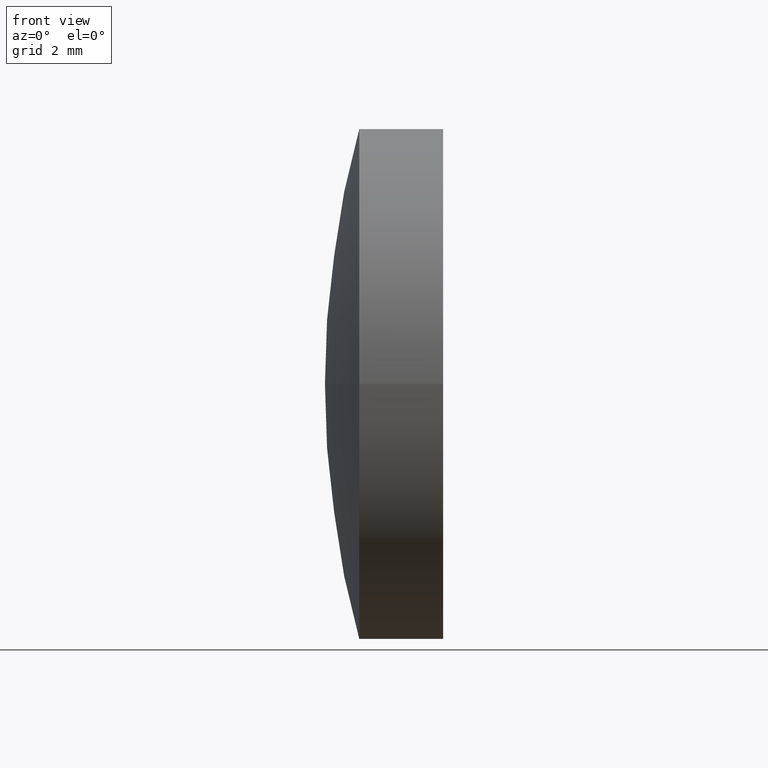
[diagram: clean part render]
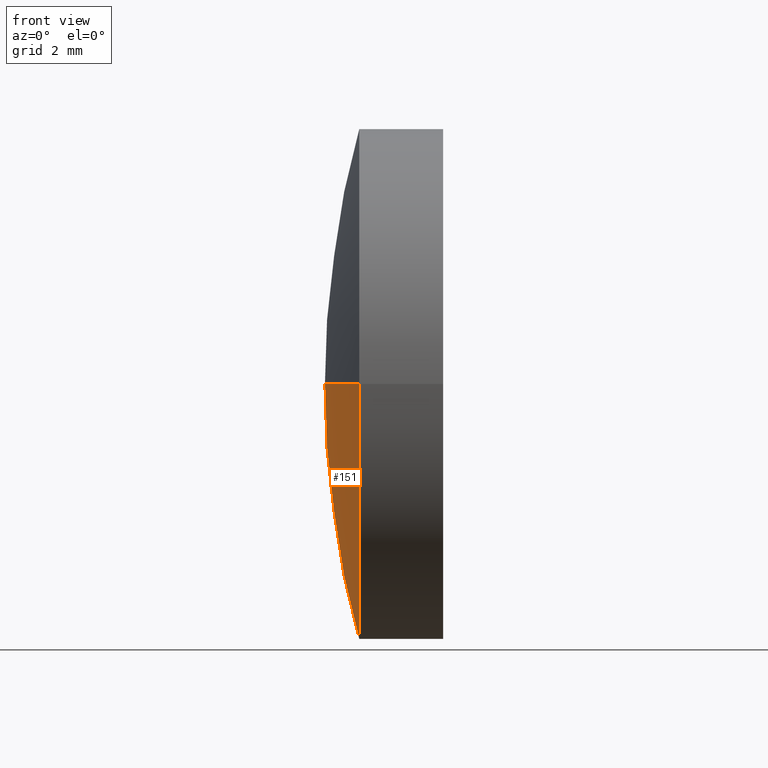
[diagram: same view with one face highlighted and labeled with its STEP entity id]
A machine part, front view. The second image highlights one B-rep face of the part: STEP entity #151.
In plain terms, the highlighted spherical surface has radius 23.7 mm.
Its self-contained STEP definition (entity closure, byte-faithful):
#11 = EDGE_CURVE ( 'NONE', #147, #45, #25, .T. ) ;
#19 = DIRECTION ( 'NONE',  ( -8.496118506040342700E-032, 1.224646799147353200E-016, -1.000000000000000000 ) ) ;
#21 = CARTESIAN_POINT ( 'NONE',  ( 85.00609674165498600, 32.60842023547017000, 0.0000000000000000000 ) ) ;
#24 = AXIS2_PLACEMENT_3D ( 'NONE', #65, #116, #98 ) ;
#25 = CIRCLE ( 'NONE', #162, 23.69999999999999900 ) ;
#34 = DIRECTION ( 'NONE',  ( 1.110223024625157300E-015, -1.000000000000000000, 0.0000000000000000000 ) ) ;
#36 = DIRECTION ( 'NONE',  ( -1.000000000000000000, -6.937607244762875000E-016, -0.0000000000000000000 ) ) ;
#43 = VERTEX_POINT ( 'NONE', #48 ) ;
#45 = VERTEX_POINT ( 'NONE', #51 ) ;
#48 = CARTESIAN_POINT ( 'NONE',  ( 62.14504908412190100, 26.35842023547016300, -7.654042494670948700E-016 ) ) ;
#51 = CARTESIAN_POINT ( 'NONE',  ( 61.30609674165499700, 32.60842023547015600, 0.0000000000000000000 ) ) ;
#57 = ORIENTED_EDGE ( 'NONE', *, *, #107, .T. ) ;
#65 = CARTESIAN_POINT ( 'NONE',  ( 85.00609674165498600, 32.60842023547017000, 0.0000000000000000000 ) ) ;
#70 = ORIENTED_EDGE ( 'NONE', *, *, #11, .F. ) ;
#77 = EDGE_CURVE ( 'NONE', #147, #43, #111, .T. ) ;
#79 = DIRECTION ( 'NONE',  ( 1.000000000000000000, 0.0000000000000000000, 0.0000000000000000000 ) ) ;
#98 = DIRECTION ( 'NONE',  ( -5.855606669963907800E-016, 1.000000000000000000, 0.0000000000000000000 ) ) ;
#102 = CARTESIAN_POINT ( 'NONE',  ( 62.14504908412190100, 32.60842023547016300, 0.0000000000000000000 ) ) ;
#107 = EDGE_CURVE ( 'NONE', #43, #45, #110, .T. ) ;
#110 = CIRCLE ( 'NONE', #185, 23.69999999999999200 ) ;
#111 = CIRCLE ( 'NONE', #119, 6.249999999999995600 ) ;
#116 = DIRECTION ( 'NONE',  ( -0.0000000000000000000, 0.0000000000000000000, -1.000000000000000000 ) ) ;
#118 = CARTESIAN_POINT ( 'NONE',  ( 62.14504908412188700, 38.85842023547015600, 0.0000000000000000000 ) ) ;
#119 = AXIS2_PLACEMENT_3D ( 'NONE', #102, #36, #34 ) ;
#126 = CARTESIAN_POINT ( 'NONE',  ( 85.00609674165498600, 32.60842023547017000, 0.0000000000000000000 ) ) ;
#127 = EDGE_LOOP ( 'NONE', ( #140, #57, #70 ) ) ;
#131 = DIRECTION ( 'NONE',  ( 0.0000000000000000000, 1.000000000000000000, 1.224646799147353000E-016 ) ) ;
#140 = ORIENTED_EDGE ( 'NONE', *, *, #77, .T. ) ;
#145 = FACE_OUTER_BOUND ( 'NONE', #127, .T. ) ;
#146 = DIRECTION ( 'NONE',  ( -0.0000000000000000000, 0.0000000000000000000, 1.000000000000000000 ) ) ;
#147 = VERTEX_POINT ( 'NONE', #118 ) ;
#151 = ADVANCED_FACE ( 'NONE', ( #145 ), #182, .T. ) ;
#162 = AXIS2_PLACEMENT_3D ( 'NONE', #126, #146, #79 ) ;
#182 = SPHERICAL_SURFACE ( 'NONE', #24, 23.69999999999999200 ) ;
#185 = AXIS2_PLACEMENT_3D ( 'NONE', #21, #19, #131 ) ;